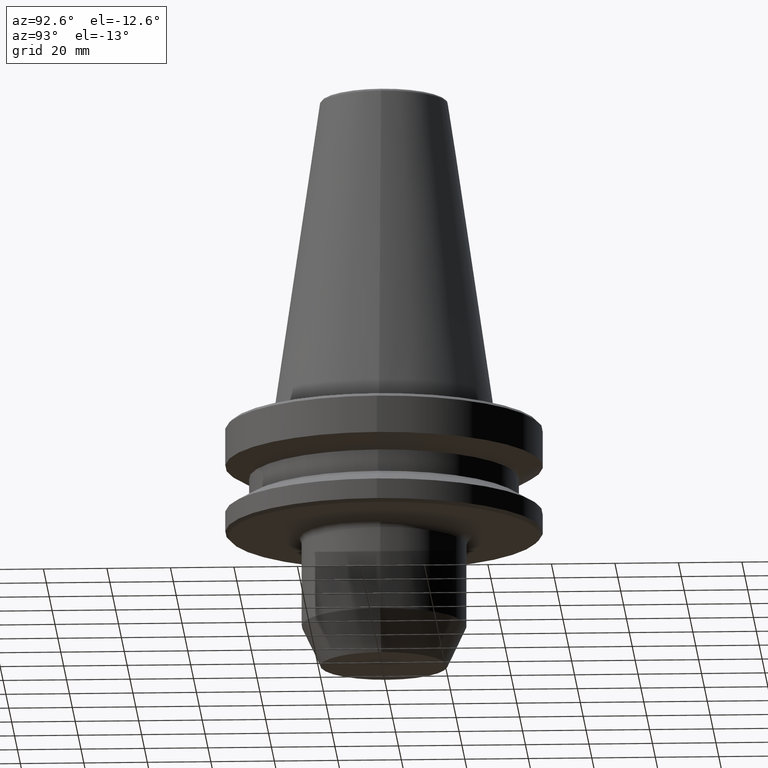
[diagram: clean part render]
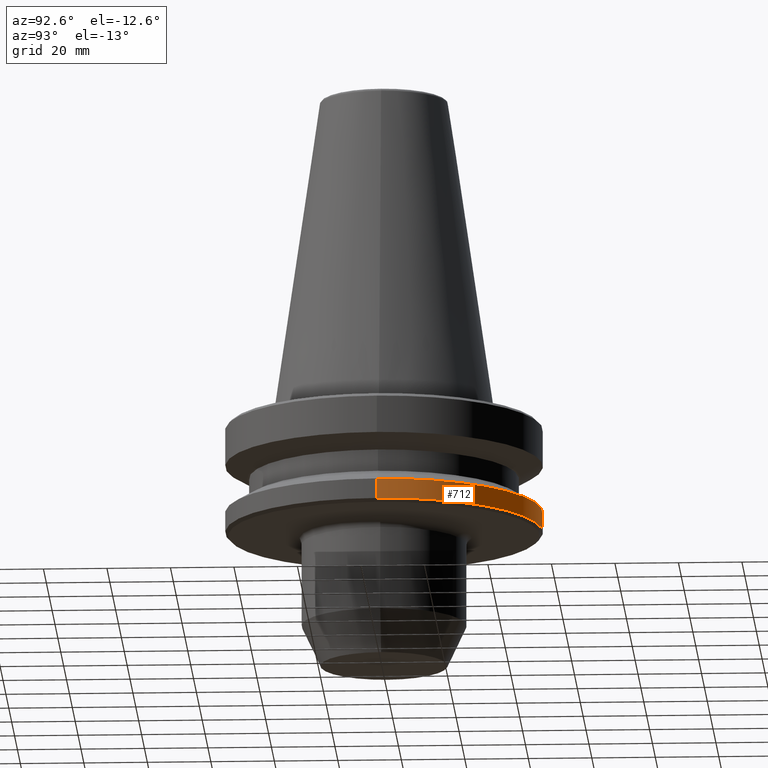
[diagram: same view with one face highlighted and labeled with its STEP entity id]
A machine part, auxiliary view. The second image highlights one B-rep face of the part: STEP entity #712.
In plain terms, the highlighted cylindrical surface (partial cylindrical patch) has radius 50 mm, axis along (-0, -0, 1).
Its self-contained STEP definition (entity closure, byte-faithful):
#10 = LINE ( 'NONE', #456, #797 ) ;
#22 = EDGE_CURVE ( 'NONE', #728, #57, #639, .T. ) ;
#49 = DIRECTION ( 'NONE',  ( -0.0000000000000000000, -0.0000000000000000000, 1.000000000000000000 ) ) ;
#57 = VERTEX_POINT ( 'NONE', #805 ) ;
#72 = EDGE_CURVE ( 'NONE', #532, #501, #575, .T. ) ;
#116 = CARTESIAN_POINT ( 'NONE',  ( 0.0000000000000000000, 0.0000000000000000000, -30.69977999677488300 ) ) ;
#121 = DIRECTION ( 'NONE',  ( -0.0000000000000000000, -0.0000000000000000000, 1.000000000000000000 ) ) ;
#142 = CARTESIAN_POINT ( 'NONE',  ( -49.99999999999970900, 6.123233995736729800E-015, -37.00000000000182600 ) ) ;
#216 = CARTESIAN_POINT ( 'NONE',  ( 0.0000000000000000000, 0.0000000000000000000, 105.9391094017344400 ) ) ;
#236 = AXIS2_PLACEMENT_3D ( 'NONE', #216, #769, #391 ) ;
#285 = DIRECTION ( 'NONE',  ( -0.0000000000000000000, -0.0000000000000000000, 1.000000000000000000 ) ) ;
#309 = CYLINDRICAL_SURFACE ( 'NONE', #236, 49.99999999999970900 ) ;
#338 = FACE_OUTER_BOUND ( 'NONE', #991, .T. ) ;
#352 = CARTESIAN_POINT ( 'NONE',  ( 49.99999999999970900, 0.0000000000000000000, -37.00000000000182600 ) ) ;
#359 = CARTESIAN_POINT ( 'NONE',  ( 49.99999999999970900, 0.0000000000000000000, -30.69977999677488300 ) ) ;
#391 = DIRECTION ( 'NONE',  ( 1.000000000000000000, 0.0000000000000000000, 0.0000000000000000000 ) ) ;
#414 = VECTOR ( 'NONE', #285, 1000.000000000000000 ) ;
#427 = ORIENTED_EDGE ( 'NONE', *, *, #22, .F. ) ;
#432 = ORIENTED_EDGE ( 'NONE', *, *, #854, .T. ) ;
#436 = DIRECTION ( 'NONE',  ( 1.000000000000000000, 0.0000000000000000000, 0.0000000000000000000 ) ) ;
#456 = CARTESIAN_POINT ( 'NONE',  ( -49.99999999999970900, 6.123233995736730600E-015, 105.9391094017344400 ) ) ;
#496 = CARTESIAN_POINT ( 'NONE',  ( 49.99999999999970900, 0.0000000000000000000, 105.9391094017344400 ) ) ;
#501 = VERTEX_POINT ( 'NONE', #142 ) ;
#532 = VERTEX_POINT ( 'NONE', #352 ) ;
#575 = CIRCLE ( 'NONE', #715, 49.99999999999970900 ) ;
#639 = CIRCLE ( 'NONE', #646, 49.99999999999970900 ) ;
#646 = AXIS2_PLACEMENT_3D ( 'NONE', #116, #754, #816 ) ;
#648 = ORIENTED_EDGE ( 'NONE', *, *, #72, .T. ) ;
#664 = LINE ( 'NONE', #496, #414 ) ;
#670 = ORIENTED_EDGE ( 'NONE', *, *, #826, .F. ) ;
#712 = ADVANCED_FACE ( 'NONE', ( #338 ), #309, .T. ) ;
#715 = AXIS2_PLACEMENT_3D ( 'NONE', #794, #121, #436 ) ;
#728 = VERTEX_POINT ( 'NONE', #359 ) ;
#754 = DIRECTION ( 'NONE',  ( -0.0000000000000000000, -0.0000000000000000000, 1.000000000000000000 ) ) ;
#769 = DIRECTION ( 'NONE',  ( -0.0000000000000000000, -0.0000000000000000000, 1.000000000000000000 ) ) ;
#794 = CARTESIAN_POINT ( 'NONE',  ( 0.0000000000000000000, 0.0000000000000000000, -37.00000000000182600 ) ) ;
#797 = VECTOR ( 'NONE', #49, 1000.000000000000000 ) ;
#805 = CARTESIAN_POINT ( 'NONE',  ( -49.99999999999970900, 6.123233995736730600E-015, -30.69977999677488300 ) ) ;
#816 = DIRECTION ( 'NONE',  ( 1.000000000000000000, 0.0000000000000000000, 0.0000000000000000000 ) ) ;
#826 = EDGE_CURVE ( 'NONE', #532, #728, #664, .T. ) ;
#854 = EDGE_CURVE ( 'NONE', #501, #57, #10, .T. ) ;
#991 = EDGE_LOOP ( 'NONE', ( #648, #432, #427, #670 ) ) ;